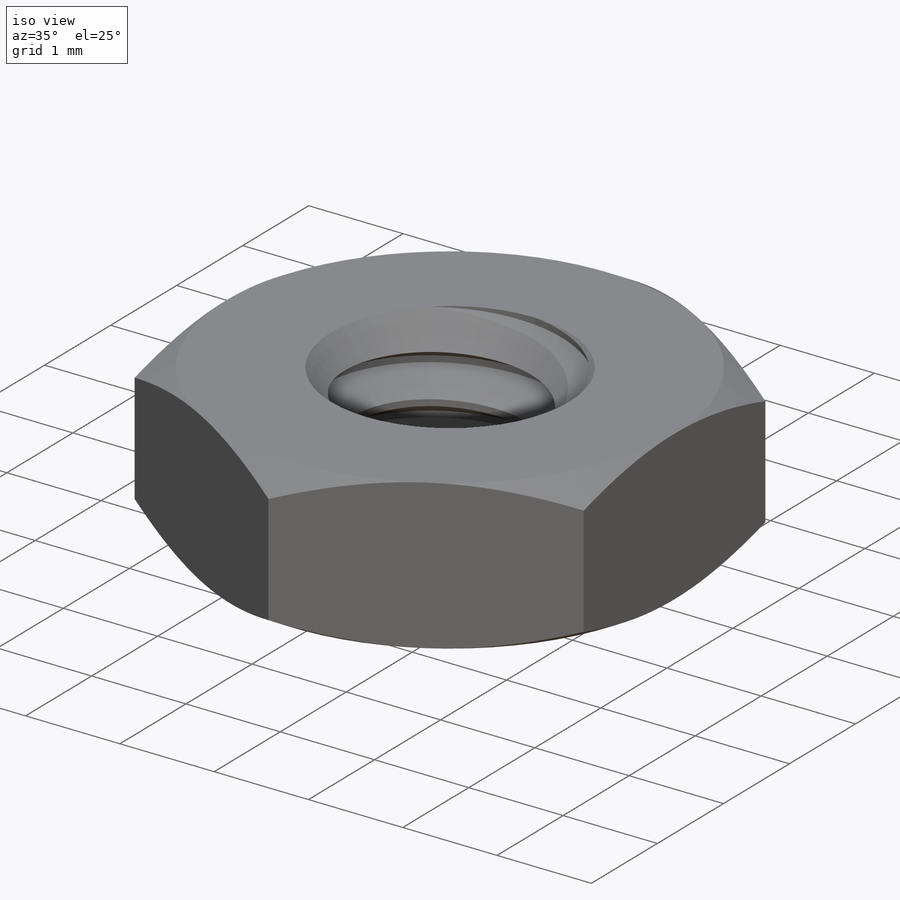
[diagram: iso view]
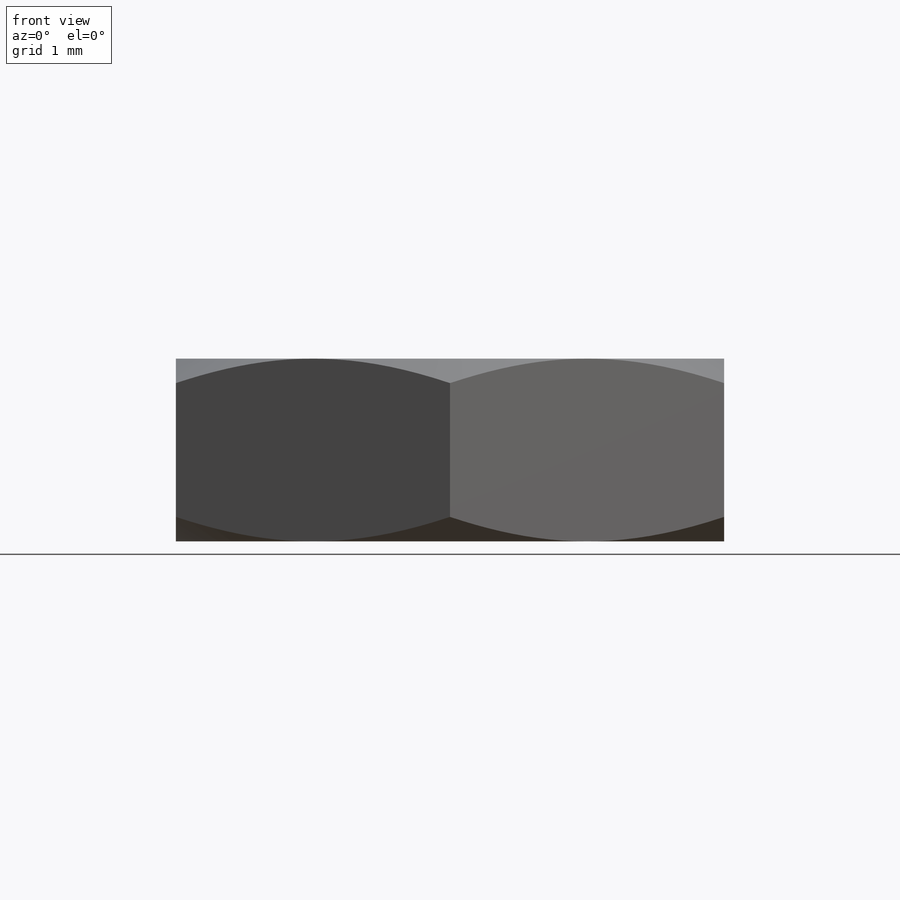
[diagram: front view]
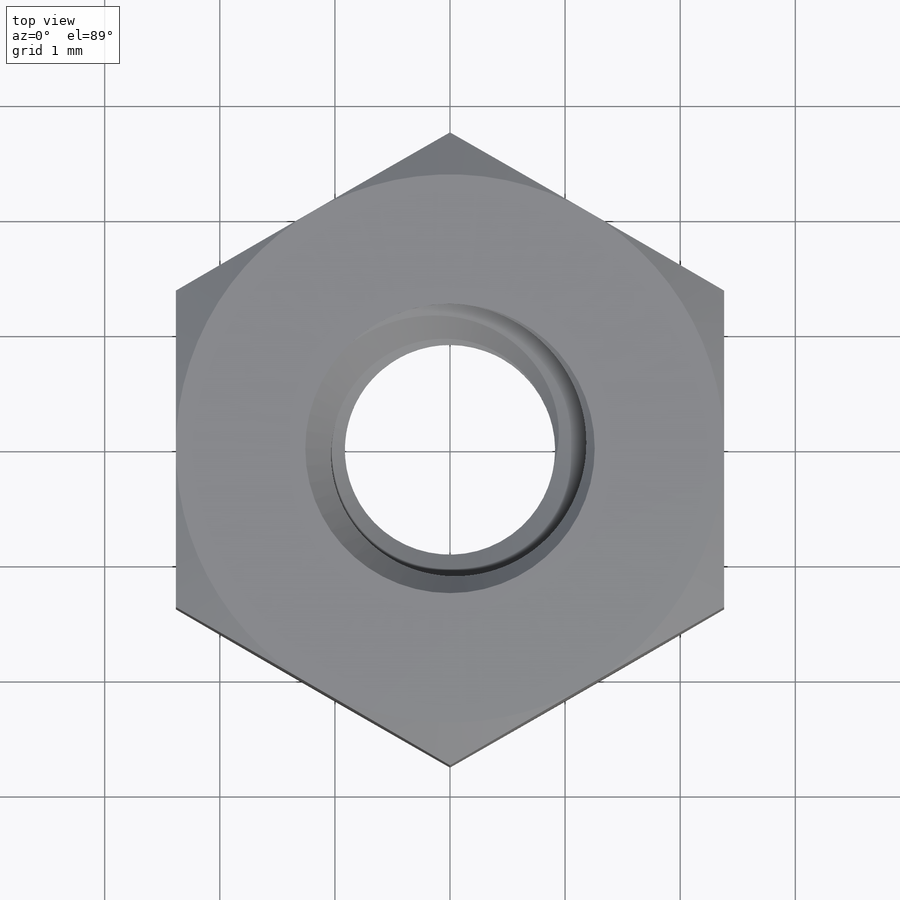
[diagram: top view]
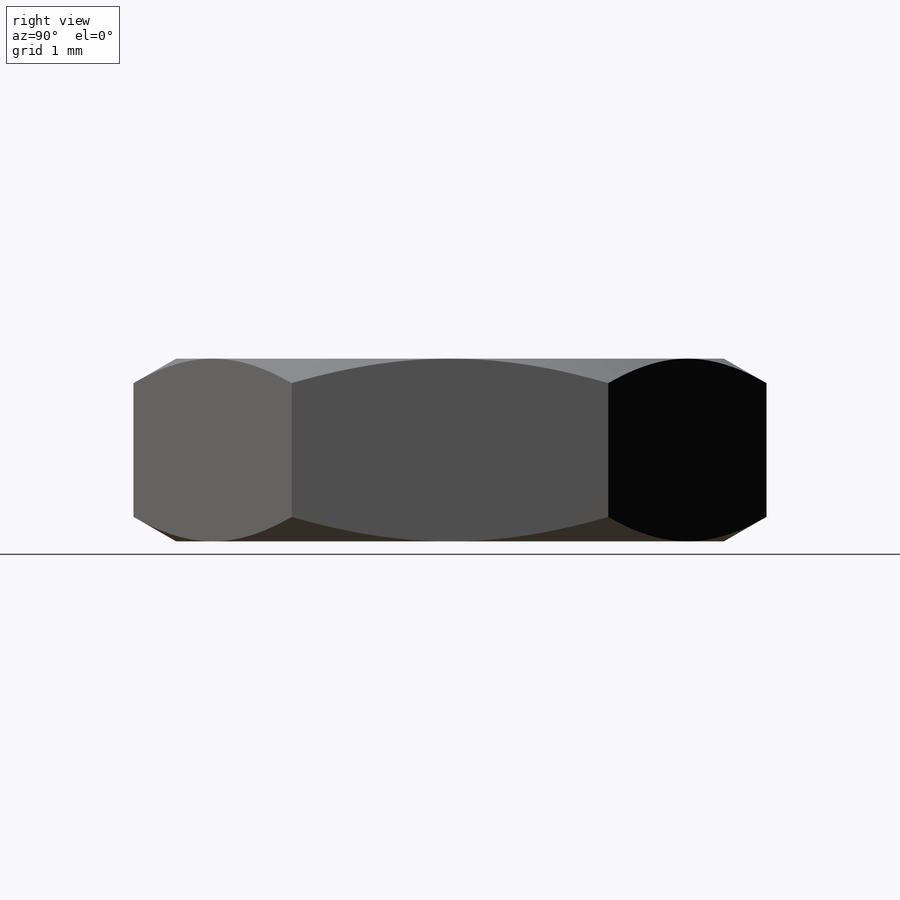
[diagram: right view]
SOLIDWORKS PART (.sldprt)
format: sldprt  version: not decoded by parser v0  size: 419,840 bytes
history: native  units: mm
features: sketch x5, cut_extrude x2, material x1, extrude x1, helix x1, sweep x1, mirror x1 (+15 scaffold rows collapsed)
feature tree (27):
  scaffold x15  (default folders/planes/origin — collapsed)
  material  "Material <not specified>"
  sketch  "Sketch1"  dims[Thread Size=2.5146mm Hex=4.7625mm]
  extrude  "Boss-Extrude1"  Depth=1.5875mm Height=1.5875mm
  sketch  "Sketch2"
  helix  "Helix/Spiral1"  Pitch=2.116667mm
  sketch  "Sketch3"  dims[c1.D1=~3.055843mm c2.D1=~104.217142deg c3.D1=~3.055843mm c4.D1=60.0deg c4.D2=~0.066146mm c4.D3=~0.264583mm]
  sweep  "Sweep1"
  sketch  "Sketch4"  dims[D1=0.0mm]
  cut_extrude  "Cut-Extrude1"  [1 undecoded]
  sketch  "Sketch5"
  cut_extrude  "Cut-Extrude2"  [1 undecoded]
  mirror  "Mirror1"
decode coverage: 5 of 11 modeling features carry decoded parameters
note: ~ marks probable driven/reference dimensions
note: 2 parameter values undecoded
note: suppression state not decoded; provenance and decode notes live in map.json
